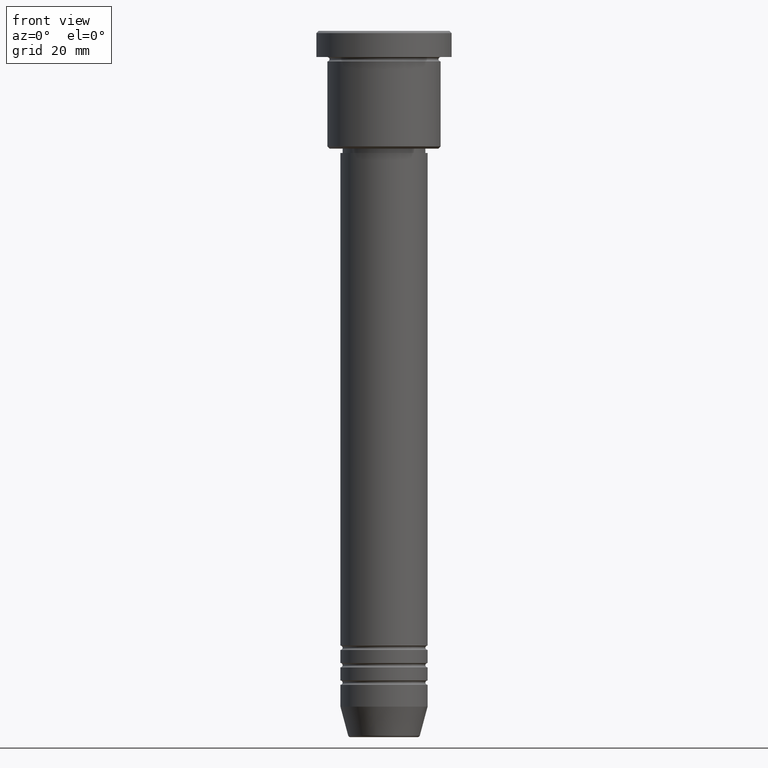
[diagram: clean part render]
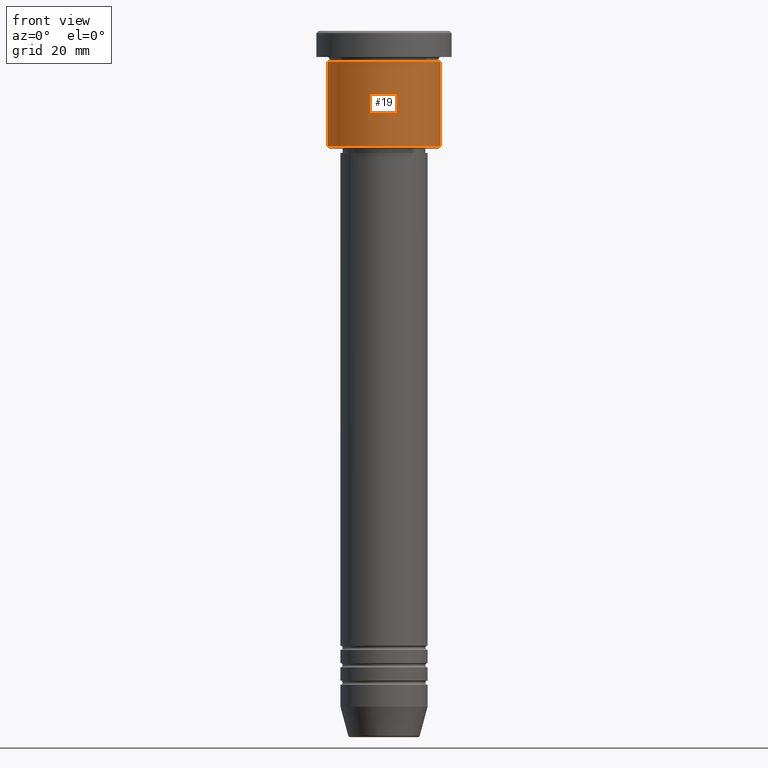
[diagram: same view with one face highlighted and labeled with its STEP entity id]
A machine part, front view. The second image highlights one B-rep face of the part: STEP entity #19.
In plain terms, the highlighted cylindrical surface (partial cylindrical patch) has radius 13 mm, axis along (-0, -0, 1).
Its self-contained STEP definition (entity closure, byte-faithful):
#19 = ADVANCED_FACE ( 'NONE', ( #749 ), #693, .T. ) ;
#21 = VECTOR ( 'NONE', #1172, 1000.000000000000000 ) ;
#49 = DIRECTION ( 'NONE',  ( -0.000000000000000000, -0.000000000000000000, 1.000000000000000000 ) ) ;
#79 = DIRECTION ( 'NONE',  ( -0.000000000000000000, -0.000000000000000000, 1.000000000000000000 ) ) ;
#82 = EDGE_CURVE ( 'NONE', #376, #1062, #720, .T. ) ;
#105 = EDGE_CURVE ( 'NONE', #1062, #523, #773, .T. ) ;
#132 = EDGE_CURVE ( 'NONE', #821, #523, #612, .T. ) ;
#133 = ORIENTED_EDGE ( 'NONE', *, *, #347, .T. ) ;
#156 = VECTOR ( 'NONE', #905, 1000.000000000000000 ) ;
#179 = DIRECTION ( 'NONE',  ( -1.000000000000000000, 0.000000000000000000, 0.000000000000000000 ) ) ;
#252 = AXIS2_PLACEMENT_3D ( 'NONE', #990, #79, #1075 ) ;
#256 = CARTESIAN_POINT ( 'NONE',  ( 13.00000000000000178, 0.000000000000000000, 0.000000000000000000 ) ) ;
#280 = CARTESIAN_POINT ( 'NONE',  ( -13.00000000000000178, 1.592040838891559293E-15, -26.50000000000001066 ) ) ;
#297 = CARTESIAN_POINT ( 'NONE',  ( 13.00000000000000178, 0.000000000000000000, -6.999999999999995559 ) ) ;
#300 = CARTESIAN_POINT ( 'NONE',  ( 13.00000000000000178, 0.000000000000000000, -26.50000000000001066 ) ) ;
#303 = CIRCLE ( 'NONE', #699, 13.00000000000000178 ) ;
#347 = EDGE_CURVE ( 'NONE', #376, #821, #303, .T. ) ;
#348 = AXIS2_PLACEMENT_3D ( 'NONE', #1051, #49, #1027 ) ;
#376 = VERTEX_POINT ( 'NONE', #280 ) ;
#431 = CARTESIAN_POINT ( 'NONE',  ( -13.00000000000000178, 1.592040838891559293E-15, -6.999999999999995559 ) ) ;
#523 = VERTEX_POINT ( 'NONE', #297 ) ;
#612 = LINE ( 'NONE', #256, #21 ) ;
#652 = CARTESIAN_POINT ( 'NONE',  ( 0.000000000000000000, 0.000000000000000000, -26.50000000000001066 ) ) ;
#693 = CYLINDRICAL_SURFACE ( 'NONE', #348, 13.00000000000000178 ) ;
#699 = AXIS2_PLACEMENT_3D ( 'NONE', #652, #742, #179 ) ;
#720 = LINE ( 'NONE', #1080, #156 ) ;
#742 = DIRECTION ( 'NONE',  ( -0.000000000000000000, -0.000000000000000000, 1.000000000000000000 ) ) ;
#749 = FACE_OUTER_BOUND ( 'NONE', #1087, .T. ) ;
#773 = CIRCLE ( 'NONE', #252, 13.00000000000000178 ) ;
#793 = ORIENTED_EDGE ( 'NONE', *, *, #82, .F. ) ;
#821 = VERTEX_POINT ( 'NONE', #300 ) ;
#905 = DIRECTION ( 'NONE',  ( -0.000000000000000000, -0.000000000000000000, 1.000000000000000000 ) ) ;
#990 = CARTESIAN_POINT ( 'NONE',  ( 0.000000000000000000, 0.000000000000000000, -6.999999999999995559 ) ) ;
#1010 = ORIENTED_EDGE ( 'NONE', *, *, #132, .T. ) ;
#1027 = DIRECTION ( 'NONE',  ( 1.000000000000000000, 0.000000000000000000, 0.000000000000000000 ) ) ;
#1051 = CARTESIAN_POINT ( 'NONE',  ( 0.000000000000000000, 0.000000000000000000, 0.000000000000000000 ) ) ;
#1062 = VERTEX_POINT ( 'NONE', #431 ) ;
#1075 = DIRECTION ( 'NONE',  ( 1.000000000000000000, 0.000000000000000000, 0.000000000000000000 ) ) ;
#1080 = CARTESIAN_POINT ( 'NONE',  ( -13.00000000000000178, 1.592040838891559293E-15, 0.000000000000000000 ) ) ;
#1087 = EDGE_LOOP ( 'NONE', ( #793, #133, #1010, #1170 ) ) ;
#1170 = ORIENTED_EDGE ( 'NONE', *, *, #105, .F. ) ;
#1172 = DIRECTION ( 'NONE',  ( -0.000000000000000000, -0.000000000000000000, 1.000000000000000000 ) ) ;